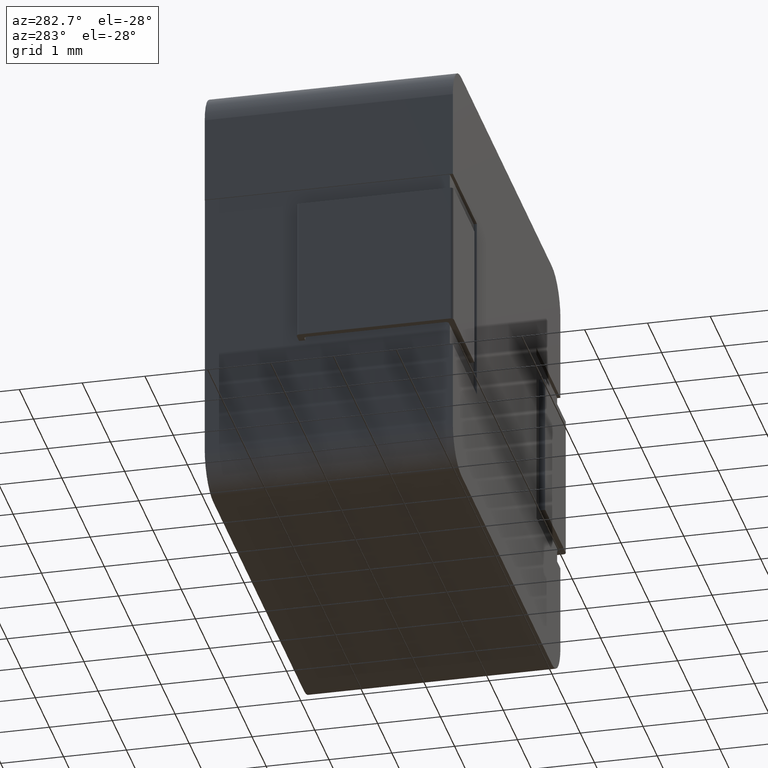
[diagram: clean part render]
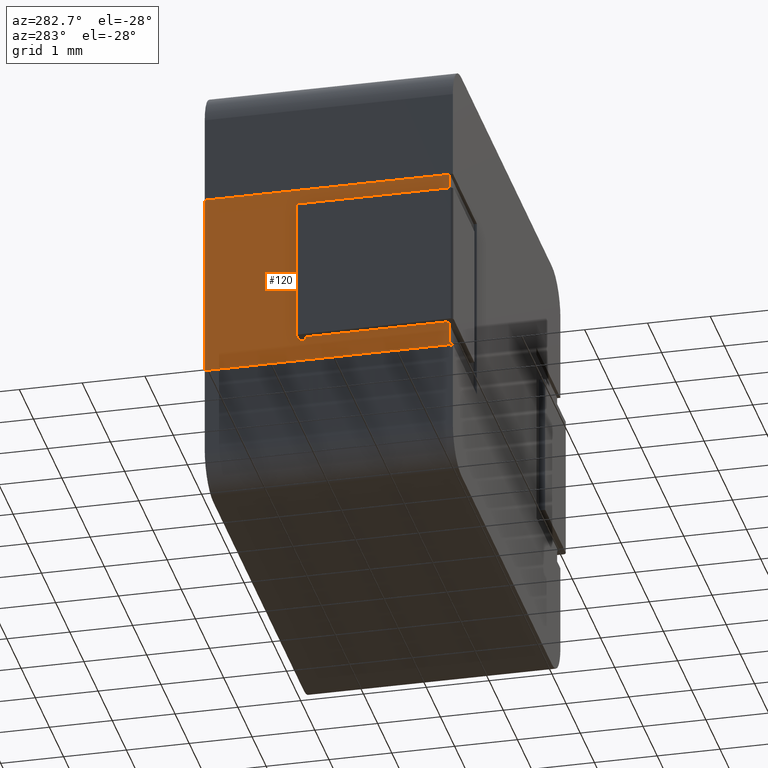
[diagram: same view with one face highlighted and labeled with its STEP entity id]
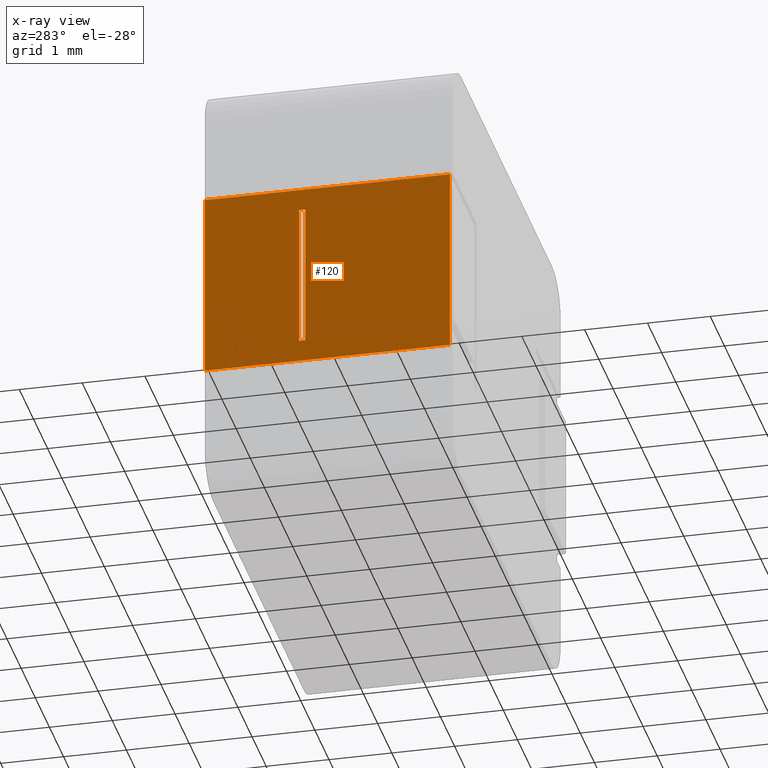
[diagram: x-ray of the same camera — body ghosted, the highlighted face saturated]
A machine part, auxiliary view. The second image highlights one B-rep face of the part: STEP entity #120.
The next image is the same camera in x-ray: the body ghosted, the highlighted face saturated — about 0% of this face is hidden behind the body in this view.
In plain terms, the highlighted planar face has unit normal (1, -0, 0).
Its self-contained STEP definition (entity closure, byte-faithful):
#9 = CARTESIAN_POINT ( 'NONE',  ( 0.01000000000000000000, 2.350000000000000500, -4.650000000000000400 ) ) ;
#87 = VERTEX_POINT ( 'NONE', #1667 ) ;
#120 = ADVANCED_FACE ( 'NONE', ( #3085, #3591 ), #737, .F. ) ;
#171 = CARTESIAN_POINT ( 'NONE',  ( 0.009999999999999998500, 0.04999999999999999600, -4.650000000000000400 ) ) ;
#196 = VERTEX_POINT ( 'NONE', #1841 ) ;
#261 = LINE ( 'NONE', #549, #3248 ) ;
#316 = CARTESIAN_POINT ( 'NONE',  ( 0.01000000000000000000, 0.05000000000000000300, -2.000000000000000000 ) ) ;
#319 = VECTOR ( 'NONE', #685, 1000.000000000000000 ) ;
#335 = EDGE_LOOP ( 'NONE', ( #3121, #2617, #1297, #1916, #2682, #2676 ) ) ;
#348 = CARTESIAN_POINT ( 'NONE',  ( 0.01000000000000000000, 0.05000000000000000300, -2.000000000000000000 ) ) ;
#413 = CARTESIAN_POINT ( 'NONE',  ( 0.01000000000000000000, 0.05000000000000000300, -2.000000000000000000 ) ) ;
#494 = CARTESIAN_POINT ( 'NONE',  ( 0.01000000000000000000, 0.0000000000000000000, 0.0000000000000000000 ) ) ;
#549 = CARTESIAN_POINT ( 'NONE',  ( 0.01000000000000000000, 0.05000000000000000300, -5.000000000000000000 ) ) ;
#619 = VECTOR ( 'NONE', #1491, 1000.000000000000000 ) ;
#648 = EDGE_CURVE ( 'NONE', #1688, #2721, #3737, .T. ) ;
#685 = DIRECTION ( 'NONE',  ( 0.0000000000000000000, 1.000000000000000000, 0.0000000000000000000 ) ) ;
#737 = PLANE ( 'NONE',  #3161 ) ;
#755 = LINE ( 'NONE', #3910, #1860 ) ;
#785 = DIRECTION ( 'NONE',  ( 1.000000000000000000, -0.0000000000000000000, 0.0000000000000000000 ) ) ;
#799 = LINE ( 'NONE', #2023, #319 ) ;
#969 = ORIENTED_EDGE ( 'NONE', *, *, #3098, .F. ) ;
#1104 = CARTESIAN_POINT ( 'NONE',  ( 0.01000000000000000000, 2.449999999999999700, -4.650000000000000400 ) ) ;
#1162 = LINE ( 'NONE', #9, #3677 ) ;
#1166 = EDGE_CURVE ( 'NONE', #1688, #3645, #1162, .T. ) ;
#1297 = ORIENTED_EDGE ( 'NONE', *, *, #1734, .T. ) ;
#1342 = LINE ( 'NONE', #348, #3593 ) ;
#1489 = EDGE_LOOP ( 'NONE', ( #3867, #3192, #969, #2825 ) ) ;
#1491 = DIRECTION ( 'NONE',  ( 0.0000000000000000000, 1.000000000000000000, 0.0000000000000000000 ) ) ;
#1590 = DIRECTION ( 'NONE',  ( 0.0000000000000000000, 0.0000000000000000000, 1.000000000000000000 ) ) ;
#1597 = VERTEX_POINT ( 'NONE', #3901 ) ;
#1648 = EDGE_CURVE ( 'NONE', #1714, #87, #755, .T. ) ;
#1658 = LINE ( 'NONE', #3964, #3369 ) ;
#1660 = VECTOR ( 'NONE', #2292, 1000.000000000000000 ) ;
#1667 = CARTESIAN_POINT ( 'NONE',  ( 0.01000000000000000000, 0.05000000000000000300, -2.350000000000000500 ) ) ;
#1669 = EDGE_CURVE ( 'NONE', #2519, #2326, #1764, .T. ) ;
#1688 = VERTEX_POINT ( 'NONE', #2022 ) ;
#1714 = VERTEX_POINT ( 'NONE', #171 ) ;
#1734 = EDGE_CURVE ( 'NONE', #87, #2519, #1658, .T. ) ;
#1743 = CARTESIAN_POINT ( 'NONE',  ( 0.01000000000000000000, 3.950000000000000200, -2.000000000000000000 ) ) ;
#1764 = LINE ( 'NONE', #413, #1660 ) ;
#1795 = LINE ( 'NONE', #1922, #3055 ) ;
#1841 = CARTESIAN_POINT ( 'NONE',  ( 0.01000000000000000000, 0.05000000000000000300, -5.000000000000000000 ) ) ;
#1860 = VECTOR ( 'NONE', #2639, 1000.000000000000000 ) ;
#1916 = ORIENTED_EDGE ( 'NONE', *, *, #1669, .T. ) ;
#1922 = CARTESIAN_POINT ( 'NONE',  ( 0.01000000000000000000, 2.449999999999999700, -4.650000000000000400 ) ) ;
#2022 = CARTESIAN_POINT ( 'NONE',  ( 0.01000000000000000000, 2.350000000000000500, -4.650000000000000400 ) ) ;
#2023 = CARTESIAN_POINT ( 'NONE',  ( 0.01000000000000000000, 2.350000000000000500, -2.350000000000000500 ) ) ;
#2052 = DIRECTION ( 'NONE',  ( -0.0000000000000000000, -0.0000000000000000000, 1.000000000000000000 ) ) ;
#2109 = CARTESIAN_POINT ( 'NONE',  ( 0.01000000000000000000, 2.350000000000000500, -4.650000000000000400 ) ) ;
#2211 = DIRECTION ( 'NONE',  ( 0.0000000000000000000, 0.0000000000000000000, 1.000000000000000000 ) ) ;
#2292 = DIRECTION ( 'NONE',  ( 0.0000000000000000000, 1.000000000000000000, 0.0000000000000000000 ) ) ;
#2305 = VERTEX_POINT ( 'NONE', #2317 ) ;
#2317 = CARTESIAN_POINT ( 'NONE',  ( 0.01000000000000000000, 2.449999999999999700, -2.350000000000000500 ) ) ;
#2326 = VERTEX_POINT ( 'NONE', #1743 ) ;
#2388 = EDGE_CURVE ( 'NONE', #2326, #1597, #4105, .T. ) ;
#2405 = CARTESIAN_POINT ( 'NONE',  ( 0.01000000000000000000, 3.950000000000000200, -5.000000000000000000 ) ) ;
#2519 = VERTEX_POINT ( 'NONE', #316 ) ;
#2546 = EDGE_CURVE ( 'NONE', #2721, #2305, #1795, .T. ) ;
#2617 = ORIENTED_EDGE ( 'NONE', *, *, #1648, .T. ) ;
#2639 = DIRECTION ( 'NONE',  ( -0.0000000000000000000, -0.0000000000000000000, 1.000000000000000000 ) ) ;
#2676 = ORIENTED_EDGE ( 'NONE', *, *, #2996, .T. ) ;
#2682 = ORIENTED_EDGE ( 'NONE', *, *, #2388, .T. ) ;
#2721 = VERTEX_POINT ( 'NONE', #1104 ) ;
#2825 = ORIENTED_EDGE ( 'NONE', *, *, #1166, .F. ) ;
#2954 = DIRECTION ( 'NONE',  ( -0.0000000000000000000, -0.0000000000000000000, 1.000000000000000000 ) ) ;
#2996 = EDGE_CURVE ( 'NONE', #1597, #196, #261, .T. ) ;
#3055 = VECTOR ( 'NONE', #1590, 1000.000000000000000 ) ;
#3085 = FACE_OUTER_BOUND ( 'NONE', #335, .T. ) ;
#3098 = EDGE_CURVE ( 'NONE', #3645, #2305, #799, .T. ) ;
#3121 = ORIENTED_EDGE ( 'NONE', *, *, #4035, .T. ) ;
#3155 = VECTOR ( 'NONE', #3988, 1000.000000000000000 ) ;
#3161 = AXIS2_PLACEMENT_3D ( 'NONE', #494, #785, #3367 ) ;
#3164 = DIRECTION ( 'NONE',  ( -0.0000000000000000000, -1.000000000000000000, -0.0000000000000000000 ) ) ;
#3192 = ORIENTED_EDGE ( 'NONE', *, *, #2546, .T. ) ;
#3248 = VECTOR ( 'NONE', #3164, 1000.000000000000000 ) ;
#3367 = DIRECTION ( 'NONE',  ( 0.0000000000000000000, 0.0000000000000000000, -1.000000000000000000 ) ) ;
#3369 = VECTOR ( 'NONE', #2052, 1000.000000000000000 ) ;
#3591 = FACE_BOUND ( 'NONE', #1489, .T. ) ;
#3593 = VECTOR ( 'NONE', #2954, 1000.000000000000000 ) ;
#3604 = CARTESIAN_POINT ( 'NONE',  ( 0.01000000000000000000, 2.350000000000000500, -2.350000000000000500 ) ) ;
#3645 = VERTEX_POINT ( 'NONE', #3604 ) ;
#3677 = VECTOR ( 'NONE', #2211, 1000.000000000000000 ) ;
#3737 = LINE ( 'NONE', #2109, #619 ) ;
#3867 = ORIENTED_EDGE ( 'NONE', *, *, #648, .T. ) ;
#3901 = CARTESIAN_POINT ( 'NONE',  ( 0.01000000000000000000, 3.950000000000000200, -5.000000000000000000 ) ) ;
#3910 = CARTESIAN_POINT ( 'NONE',  ( 0.01000000000000000000, 0.05000000000000000300, -2.000000000000000000 ) ) ;
#3964 = CARTESIAN_POINT ( 'NONE',  ( 0.01000000000000000000, 0.05000000000000000300, -2.000000000000000000 ) ) ;
#3988 = DIRECTION ( 'NONE',  ( -0.0000000000000000000, -0.0000000000000000000, -1.000000000000000000 ) ) ;
#4035 = EDGE_CURVE ( 'NONE', #196, #1714, #1342, .T. ) ;
#4105 = LINE ( 'NONE', #2405, #3155 ) ;